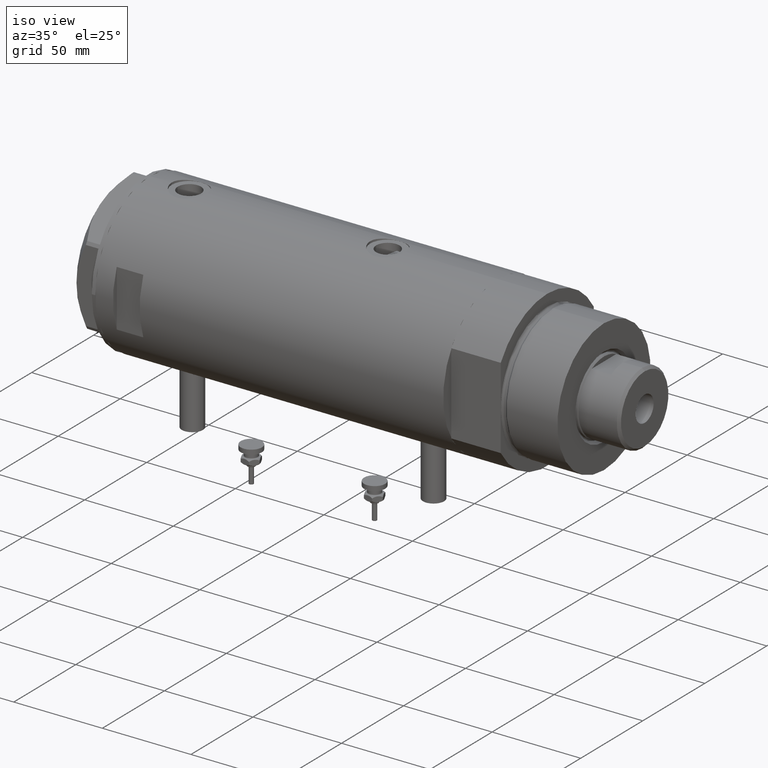
[diagram: clean part render]
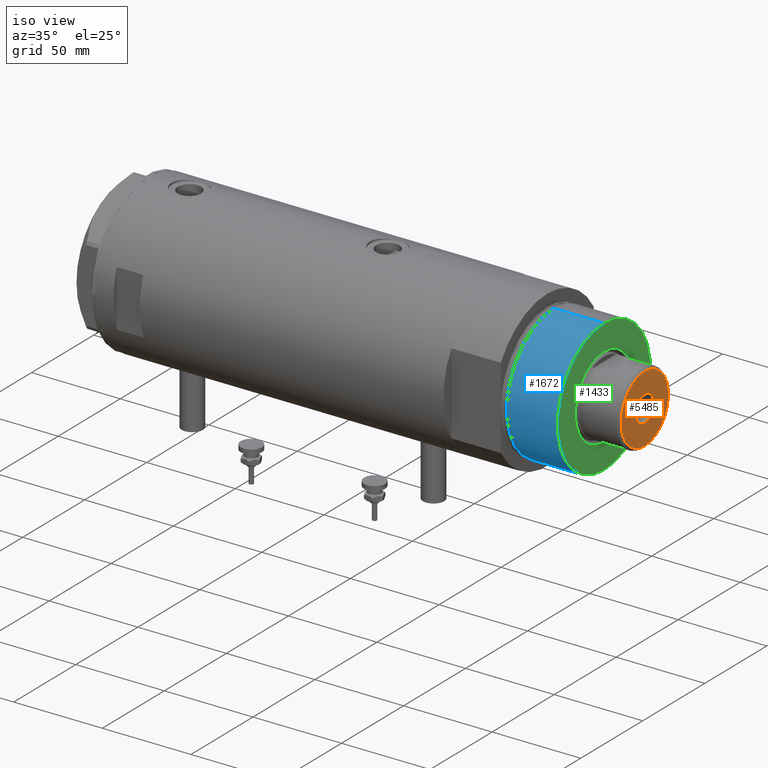
[diagram: same view with three faces highlighted in distinct colors, each labeled with its STEP entity id]
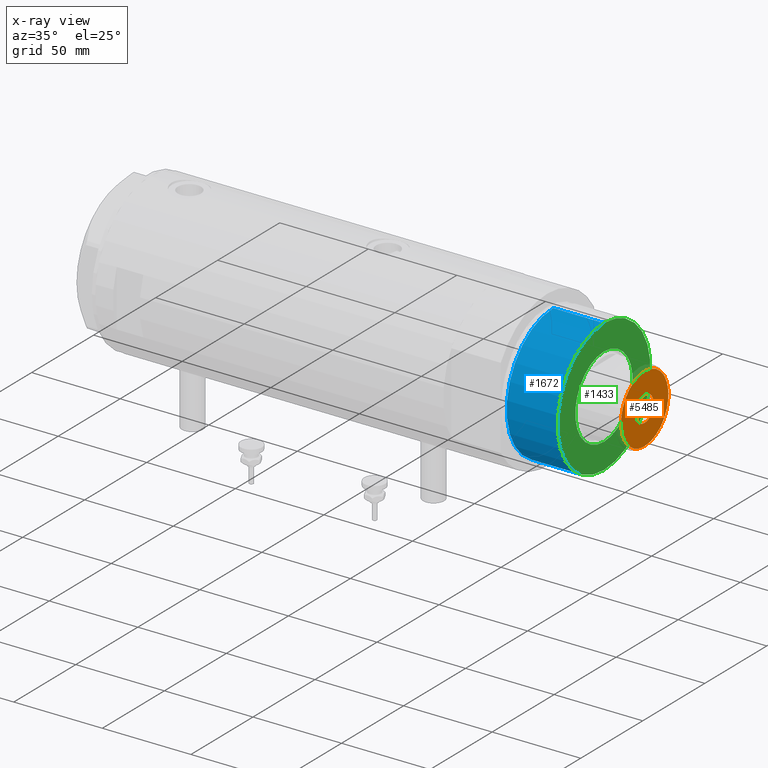
[diagram: x-ray of the same camera — body ghosted, the three highlighted faces saturated]
A machine part, iso view with three faces highlighted in distinct colors.
The next image is the same camera in x-ray (body ghosted, the three faces saturated) — at least one of them is partly hidden behind the body in this view.
Their STEP definitions:

[orange] entity #5485 — the highlighted planar face has unit normal (1, 0, -0).
#88 = DIRECTION ( 'NONE',  ( 0.000000000000000000, 0.000000000000000000, 1.000000000000000000 ) ) ;
#103 = ORIENTED_EDGE ( 'NONE', *, *, #1132, .T. ) ;
#150 = CARTESIAN_POINT ( 'NONE',  ( 0.000000000000000000, 0.000000000000000000, 253.3000000000000114 ) ) ;
#285 = AXIS2_PLACEMENT_3D ( 'NONE', #2036, #88, #4381 ) ;
#433 = CARTESIAN_POINT ( 'NONE',  ( 0.000000000000000000, 0.000000000000000000, 253.3000000000000114 ) ) ;
#662 = DIRECTION ( 'NONE',  ( -0.000000000000000000, -0.000000000000000000, 1.000000000000000000 ) ) ;
#664 = CIRCLE ( 'NONE', #3096, 19.10000000000006182 ) ;
#787 = ORIENTED_EDGE ( 'NONE', *, *, #1711, .F. ) ;
#918 = AXIS2_PLACEMENT_3D ( 'NONE', #150, #662, #3942 ) ;
#1001 = CARTESIAN_POINT ( 'NONE',  ( 0.000000000000000000, 0.000000000000000000, 253.3000000000000114 ) ) ;
#1132 = EDGE_CURVE ( 'NONE', #1495, #2344, #4344, .T. ) ;
#1402 = CARTESIAN_POINT ( 'NONE',  ( 19.10000000000006182, 2.424800662311762954E-15, 253.3000000000000114 ) ) ;
#1476 = ORIENTED_EDGE ( 'NONE', *, *, #5226, .T. ) ;
#1495 = VERTEX_POINT ( 'NONE', #4760 ) ;
#1600 = AXIS2_PLACEMENT_3D ( 'NONE', #1001, #2858, #4737 ) ;
#1625 = AXIS2_PLACEMENT_3D ( 'NONE', #433, #2305, #1868 ) ;
#1711 = EDGE_CURVE ( 'NONE', #2529, #2039, #2277, .T. ) ;
#1868 = DIRECTION ( 'NONE',  ( 1.000000000000000000, 0.000000000000000000, 0.000000000000000000 ) ) ;
#1912 = CIRCLE ( 'NONE', #1625, 7.249999999999999112 ) ;
#2006 = PLANE ( 'NONE',  #285 ) ;
#2036 = CARTESIAN_POINT ( 'NONE',  ( 0.000000000000000000, 0.000000000000000000, 253.3000000000000114 ) ) ;
#2039 = VERTEX_POINT ( 'NONE', #4810 ) ;
#2277 = CIRCLE ( 'NONE', #918, 7.249999999999999112 ) ;
#2305 = DIRECTION ( 'NONE',  ( -0.000000000000000000, -0.000000000000000000, 1.000000000000000000 ) ) ;
#2344 = VERTEX_POINT ( 'NONE', #1402 ) ;
#2529 = VERTEX_POINT ( 'NONE', #5779 ) ;
#2858 = DIRECTION ( 'NONE',  ( 0.000000000000000000, 0.000000000000000000, 1.000000000000000000 ) ) ;
#3096 = AXIS2_PLACEMENT_3D ( 'NONE', #5814, #5388, #4465 ) ;
#3372 = ORIENTED_EDGE ( 'NONE', *, *, #5902, .F. ) ;
#3942 = DIRECTION ( 'NONE',  ( 1.000000000000000000, 0.000000000000000000, 0.000000000000000000 ) ) ;
#4318 = FACE_BOUND ( 'NONE', #5830, .T. ) ;
#4344 = CIRCLE ( 'NONE', #1600, 19.10000000000006182 ) ;
#4381 = DIRECTION ( 'NONE',  ( 1.000000000000000000, 0.000000000000000000, -0.000000000000000000 ) ) ;
#4465 = DIRECTION ( 'NONE',  ( 1.000000000000000000, 0.000000000000000000, 0.000000000000000000 ) ) ;
#4737 = DIRECTION ( 'NONE',  ( 1.000000000000000000, 0.000000000000000000, 0.000000000000000000 ) ) ;
#4760 = CARTESIAN_POINT ( 'NONE',  ( -19.10000000000006182, 0.000000000000000000, 253.3000000000000114 ) ) ;
#4810 = CARTESIAN_POINT ( 'NONE',  ( 7.249999999999999112, 0.000000000000000000, 253.3000000000000114 ) ) ;
#4840 = FACE_OUTER_BOUND ( 'NONE', #5820, .T. ) ;
#5226 = EDGE_CURVE ( 'NONE', #2344, #1495, #664, .T. ) ;
#5388 = DIRECTION ( 'NONE',  ( 0.000000000000000000, 0.000000000000000000, 1.000000000000000000 ) ) ;
#5485 = ADVANCED_FACE ( 'NONE', ( #4840, #4318 ), #2006, .T. ) ;
#5779 = CARTESIAN_POINT ( 'NONE',  ( -7.249999999999999112, 8.878689293818310074E-16, 253.3000000000000114 ) ) ;
#5814 = CARTESIAN_POINT ( 'NONE',  ( 0.000000000000000000, 0.000000000000000000, 253.3000000000000114 ) ) ;
#5820 = EDGE_LOOP ( 'NONE', ( #103, #1476 ) ) ;
#5830 = EDGE_LOOP ( 'NONE', ( #3372, #787 ) ) ;
#5902 = EDGE_CURVE ( 'NONE', #2039, #2529, #1912, .T. ) ;

[blue] entity #1672 — the highlighted cylindrical surface (partial cylindrical patch) has radius 37.5 mm, axis along (-1, -0, 0).
#86 = VERTEX_POINT ( 'NONE', #3490 ) ;
#161 = ORIENTED_EDGE ( 'NONE', *, *, #3577, .T. ) ;
#273 = EDGE_LOOP ( 'NONE', ( #748, #1080, #161, #5582 ) ) ;
#311 = CARTESIAN_POINT ( 'NONE',  ( 37.50000000000000711, 4.592425496802575156E-15, 31.27384048104054415 ) ) ;
#608 = CARTESIAN_POINT ( 'NONE',  ( -37.50000000000000711, 0.000000000000000000, 59.89999999999999147 ) ) ;
#748 = ORIENTED_EDGE ( 'NONE', *, *, #3908, .F. ) ;
#843 = AXIS2_PLACEMENT_3D ( 'NONE', #991, #4295, #4544 ) ;
#947 = CARTESIAN_POINT ( 'NONE',  ( 0.000000000000000000, 0.000000000000000000, 59.89999999999999147 ) ) ;
#991 = CARTESIAN_POINT ( 'NONE',  ( 0.000000000000000000, 0.000000000000000000, 31.27384048104054415 ) ) ;
#998 = LINE ( 'NONE', #608, #3757 ) ;
#1080 = ORIENTED_EDGE ( 'NONE', *, *, #1111, .F. ) ;
#1111 = EDGE_CURVE ( 'NONE', #86, #3606, #2961, .T. ) ;
#1139 = FACE_OUTER_BOUND ( 'NONE', #273, .T. ) ;
#1171 = CARTESIAN_POINT ( 'NONE',  ( 0.000000000000000000, 0.000000000000000000, 59.89999999999999147 ) ) ;
#1328 = CIRCLE ( 'NONE', #843, 37.50000000000000711 ) ;
#1473 = DIRECTION ( 'NONE',  ( -0.000000000000000000, -0.000000000000000000, -1.000000000000000000 ) ) ;
#1480 = DIRECTION ( 'NONE',  ( -0.000000000000000000, -0.000000000000000000, -1.000000000000000000 ) ) ;
#1535 = CARTESIAN_POINT ( 'NONE',  ( 37.50000000000000711, 4.592425496802575156E-15, 59.89999999999999147 ) ) ;
#1554 = DIRECTION ( 'NONE',  ( -1.000000000000000000, 0.000000000000000000, 0.000000000000000000 ) ) ;
#1668 = VERTEX_POINT ( 'NONE', #5740 ) ;
#1672 = ADVANCED_FACE ( 'NONE', ( #1139 ), #2995, .T. ) ;
#2465 = VERTEX_POINT ( 'NONE', #311 ) ;
#2961 = CIRCLE ( 'NONE', #4562, 37.50000000000000711 ) ;
#2995 = CYLINDRICAL_SURFACE ( 'NONE', #3165, 37.50000000000000711 ) ;
#3165 = AXIS2_PLACEMENT_3D ( 'NONE', #1171, #4929, #1554 ) ;
#3263 = VECTOR ( 'NONE', #1473, 1000.000000000000000 ) ;
#3283 = EDGE_CURVE ( 'NONE', #1668, #2465, #1328, .T. ) ;
#3308 = DIRECTION ( 'NONE',  ( 0.000000000000000000, 0.000000000000000000, 1.000000000000000000 ) ) ;
#3490 = CARTESIAN_POINT ( 'NONE',  ( -37.50000000000000711, 0.000000000000000000, 59.89999999999999147 ) ) ;
#3577 = EDGE_CURVE ( 'NONE', #86, #1668, #998, .T. ) ;
#3606 = VERTEX_POINT ( 'NONE', #1535 ) ;
#3757 = VECTOR ( 'NONE', #1480, 1000.000000000000000 ) ;
#3908 = EDGE_CURVE ( 'NONE', #3606, #2465, #5585, .T. ) ;
#4295 = DIRECTION ( 'NONE',  ( -0.000000000000000000, -0.000000000000000000, 1.000000000000000000 ) ) ;
#4544 = DIRECTION ( 'NONE',  ( 1.000000000000000000, 0.000000000000000000, 0.000000000000000000 ) ) ;
#4562 = AXIS2_PLACEMENT_3D ( 'NONE', #947, #3308, #5151 ) ;
#4703 = CARTESIAN_POINT ( 'NONE',  ( 37.50000000000000711, 4.592425496802575156E-15, 59.89999999999999147 ) ) ;
#4929 = DIRECTION ( 'NONE',  ( -0.000000000000000000, -0.000000000000000000, -1.000000000000000000 ) ) ;
#5151 = DIRECTION ( 'NONE',  ( 1.000000000000000000, 0.000000000000000000, 0.000000000000000000 ) ) ;
#5582 = ORIENTED_EDGE ( 'NONE', *, *, #3283, .T. ) ;
#5585 = LINE ( 'NONE', #4703, #3263 ) ;
#5740 = CARTESIAN_POINT ( 'NONE',  ( -37.50000000000000711, 0.000000000000000000, 31.27384048104054415 ) ) ;

[green] entity #1433 — the highlighted planar face has unit normal (1, 0, -0).
#86 = VERTEX_POINT ( 'NONE', #3490 ) ;
#97 = AXIS2_PLACEMENT_3D ( 'NONE', #542, #2392, #1971 ) ;
#275 = DIRECTION ( 'NONE',  ( 1.000000000000000000, 0.000000000000000000, 0.000000000000000000 ) ) ;
#396 = EDGE_LOOP ( 'NONE', ( #3406, #3452 ) ) ;
#502 = EDGE_LOOP ( 'NONE', ( #2256, #741 ) ) ;
#542 = CARTESIAN_POINT ( 'NONE',  ( 0.000000000000000000, 0.000000000000000000, 59.89999999999999147 ) ) ;
#741 = ORIENTED_EDGE ( 'NONE', *, *, #1243, .T. ) ;
#907 = DIRECTION ( 'NONE',  ( -0.000000000000000000, -0.000000000000000000, -1.000000000000000000 ) ) ;
#947 = CARTESIAN_POINT ( 'NONE',  ( 0.000000000000000000, 0.000000000000000000, 59.89999999999999147 ) ) ;
#1020 = DIRECTION ( 'NONE',  ( 0.000000000000000000, 0.000000000000000000, 1.000000000000000000 ) ) ;
#1111 = EDGE_CURVE ( 'NONE', #86, #3606, #2961, .T. ) ;
#1243 = EDGE_CURVE ( 'NONE', #2442, #3832, #2864, .T. ) ;
#1433 = ADVANCED_FACE ( 'NONE', ( #3104, #4559 ), #2214, .T. ) ;
#1490 = CARTESIAN_POINT ( 'NONE',  ( -23.05000000000002913, 2.822810872034651791E-15, 59.89999999999999147 ) ) ;
#1535 = CARTESIAN_POINT ( 'NONE',  ( 37.50000000000000711, 4.592425496802575156E-15, 59.89999999999999147 ) ) ;
#1624 = CARTESIAN_POINT ( 'NONE',  ( 0.000000000000000000, 0.000000000000000000, 59.89999999999999147 ) ) ;
#1777 = DIRECTION ( 'NONE',  ( 1.000000000000000000, 0.000000000000000000, 0.000000000000000000 ) ) ;
#1808 = CIRCLE ( 'NONE', #4852, 23.05000000000002913 ) ;
#1971 = DIRECTION ( 'NONE',  ( 1.000000000000000000, 0.000000000000000000, 0.000000000000000000 ) ) ;
#2214 = PLANE ( 'NONE',  #3555 ) ;
#2256 = ORIENTED_EDGE ( 'NONE', *, *, #4209, .T. ) ;
#2392 = DIRECTION ( 'NONE',  ( 0.000000000000000000, 0.000000000000000000, 1.000000000000000000 ) ) ;
#2426 = DIRECTION ( 'NONE',  ( 1.000000000000000000, 0.000000000000000000, -0.000000000000000000 ) ) ;
#2442 = VERTEX_POINT ( 'NONE', #1490 ) ;
#2864 = CIRCLE ( 'NONE', #5997, 23.05000000000002913 ) ;
#2961 = CIRCLE ( 'NONE', #4562, 37.50000000000000711 ) ;
#3104 = FACE_BOUND ( 'NONE', #502, .T. ) ;
#3308 = DIRECTION ( 'NONE',  ( 0.000000000000000000, 0.000000000000000000, 1.000000000000000000 ) ) ;
#3406 = ORIENTED_EDGE ( 'NONE', *, *, #1111, .T. ) ;
#3452 = ORIENTED_EDGE ( 'NONE', *, *, #5492, .T. ) ;
#3490 = CARTESIAN_POINT ( 'NONE',  ( -37.50000000000000711, 0.000000000000000000, 59.89999999999999147 ) ) ;
#3555 = AXIS2_PLACEMENT_3D ( 'NONE', #4092, #1020, #2426 ) ;
#3606 = VERTEX_POINT ( 'NONE', #1535 ) ;
#3678 = CIRCLE ( 'NONE', #97, 37.50000000000000711 ) ;
#3832 = VERTEX_POINT ( 'NONE', #4114 ) ;
#4092 = CARTESIAN_POINT ( 'NONE',  ( 0.000000000000000000, 0.000000000000000000, 59.89999999999999147 ) ) ;
#4114 = CARTESIAN_POINT ( 'NONE',  ( 23.05000000000002913, 0.000000000000000000, 59.89999999999999147 ) ) ;
#4209 = EDGE_CURVE ( 'NONE', #3832, #2442, #1808, .T. ) ;
#4426 = DIRECTION ( 'NONE',  ( -0.000000000000000000, -0.000000000000000000, -1.000000000000000000 ) ) ;
#4559 = FACE_OUTER_BOUND ( 'NONE', #396, .T. ) ;
#4562 = AXIS2_PLACEMENT_3D ( 'NONE', #947, #3308, #5151 ) ;
#4852 = AXIS2_PLACEMENT_3D ( 'NONE', #6000, #907, #1777 ) ;
#5151 = DIRECTION ( 'NONE',  ( 1.000000000000000000, 0.000000000000000000, 0.000000000000000000 ) ) ;
#5492 = EDGE_CURVE ( 'NONE', #3606, #86, #3678, .T. ) ;
#5997 = AXIS2_PLACEMENT_3D ( 'NONE', #1624, #4426, #275 ) ;
#6000 = CARTESIAN_POINT ( 'NONE',  ( 0.000000000000000000, 0.000000000000000000, 59.89999999999999147 ) ) ;